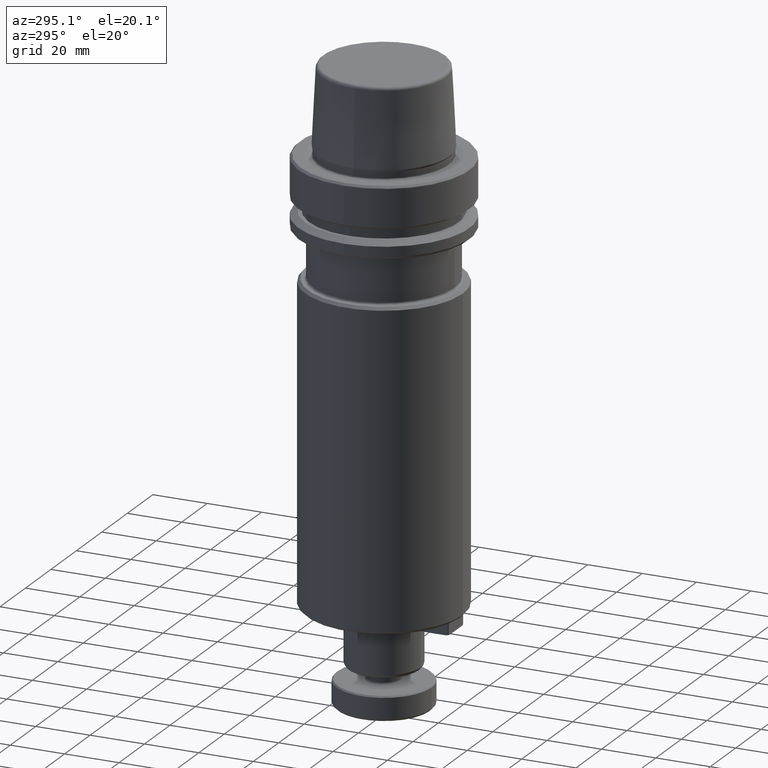
[diagram: clean part render]
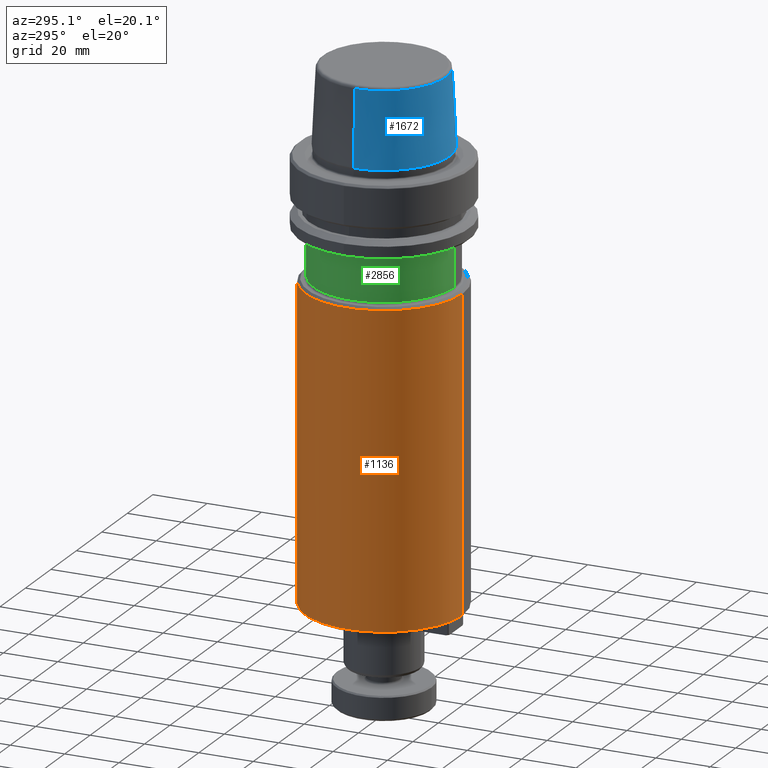
[diagram: same view with three faces highlighted in distinct colors, each labeled with its STEP entity id]
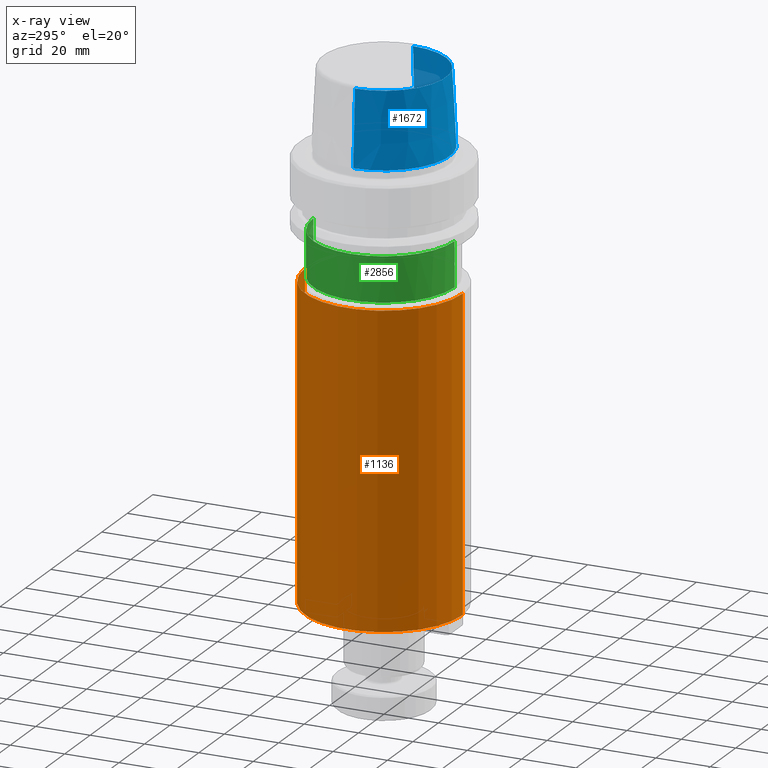
[diagram: x-ray of the same camera — body ghosted, the three highlighted faces saturated]
A machine part, auxiliary view with three faces highlighted in distinct colors.
The next image is the same camera in x-ray (body ghosted, the three faces saturated) — at least one of them is partly hidden behind the body in this view.
Their STEP definitions:

[orange] entity #1136 — the highlighted cylindrical surface (partial cylindrical patch) has radius 29 mm, axis along (-0, 0, -1).
#87 = CYLINDRICAL_SURFACE ( 'NONE', #2025, 29.00000000000000000 ) ;
#137 = AXIS2_PLACEMENT_3D ( 'NONE', #869, #2479, #1103 ) ;
#351 = CARTESIAN_POINT ( 'NONE',  ( 0.0000000000000000000, 29.00000000000000700, -181.0000000000000000 ) ) ;
#405 = EDGE_CURVE ( 'NONE', #485, #812, #2250, .T. ) ;
#417 = CARTESIAN_POINT ( 'NONE',  ( 3.551475717527324800E-015, -29.00000000000000400, -45.00000000000001400 ) ) ;
#418 = VECTOR ( 'NONE', #1939, 1000.000000000000000 ) ;
#445 = DIRECTION ( 'NONE',  ( -0.0000000000000000000, 4.740568254763946100E-017, -1.000000000000000000 ) ) ;
#478 = CARTESIAN_POINT ( 'NONE',  ( 3.551475717527324000E-015, -28.99999999999999300, -159.0000000000000300 ) ) ;
#485 = VERTEX_POINT ( 'NONE', #1277 ) ;
#643 = VECTOR ( 'NONE', #2083, 1000.000000000000000 ) ;
#720 = LINE ( 'NONE', #1850, #643 ) ;
#812 = VERTEX_POINT ( 'NONE', #1721 ) ;
#869 = CARTESIAN_POINT ( 'NONE',  ( 0.0000000000000000000, 9.007079684051494200E-016, -45.00000000000001400 ) ) ;
#907 = ORIENTED_EDGE ( 'NONE', *, *, #1222, .T. ) ;
#994 = ORIENTED_EDGE ( 'NONE', *, *, #405, .T. ) ;
#1091 = CIRCLE ( 'NONE', #137, 29.00000000000000000 ) ;
#1103 = DIRECTION ( 'NONE',  ( 0.0000000000000000000, 1.000000000000000000, 0.0000000000000000000 ) ) ;
#1136 = ADVANCED_FACE ( 'NONE', ( #1895 ), #87, .T. ) ;
#1222 = EDGE_CURVE ( 'NONE', #2679, #485, #1091, .T. ) ;
#1277 = CARTESIAN_POINT ( 'NONE',  ( 0.0000000000000000000, 29.00000000000000000, -45.00000000000001400 ) ) ;
#1299 = AXIS2_PLACEMENT_3D ( 'NONE', #1794, #445, #2027 ) ;
#1502 = VERTEX_POINT ( 'NONE', #478 ) ;
#1564 = ORIENTED_EDGE ( 'NONE', *, *, #2941, .F. ) ;
#1594 = DIRECTION ( 'NONE',  ( 0.0000000000000000000, 1.000000000000000000, 0.0000000000000000000 ) ) ;
#1597 = EDGE_CURVE ( 'NONE', #2679, #1502, #720, .T. ) ;
#1721 = CARTESIAN_POINT ( 'NONE',  ( 0.0000000000000000000, 29.00000000000000700, -159.0000000000000300 ) ) ;
#1794 = CARTESIAN_POINT ( 'NONE',  ( 0.0000000000000000000, 6.304955778836048900E-015, -159.0000000000000300 ) ) ;
#1846 = ORIENTED_EDGE ( 'NONE', *, *, #1597, .F. ) ;
#1850 = CARTESIAN_POINT ( 'NONE',  ( 3.551475717527324000E-015, -28.99999999999999300, -181.0000000000000000 ) ) ;
#1895 = FACE_OUTER_BOUND ( 'NONE', #2026, .T. ) ;
#1939 = DIRECTION ( 'NONE',  ( -0.0000000000000000000, 4.740568254763946100E-017, -1.000000000000000000 ) ) ;
#1995 = CIRCLE ( 'NONE', #1299, 29.00000000000000000 ) ;
#2025 = AXIS2_PLACEMENT_3D ( 'NONE', #2781, #2303, #1594 ) ;
#2026 = EDGE_LOOP ( 'NONE', ( #1846, #907, #994, #1564 ) ) ;
#2027 = DIRECTION ( 'NONE',  ( 0.0000000000000000000, 1.000000000000000000, 0.0000000000000000000 ) ) ;
#2083 = DIRECTION ( 'NONE',  ( -0.0000000000000000000, 4.740568254763946100E-017, -1.000000000000000000 ) ) ;
#2250 = LINE ( 'NONE', #351, #418 ) ;
#2303 = DIRECTION ( 'NONE',  ( -0.0000000000000000000, 4.740568254763946100E-017, -1.000000000000000000 ) ) ;
#2479 = DIRECTION ( 'NONE',  ( -0.0000000000000000000, 4.740568254763946100E-017, -1.000000000000000000 ) ) ;
#2679 = VERTEX_POINT ( 'NONE', #417 ) ;
#2781 = CARTESIAN_POINT ( 'NONE',  ( 0.0000000000000000000, 7.347880794884115200E-015, -181.0000000000000000 ) ) ;
#2941 = EDGE_CURVE ( 'NONE', #1502, #812, #1995, .T. ) ;

[blue] entity #1672 — the highlighted conical surface has half-angle 2.868 deg.
#48 = CARTESIAN_POINT ( 'NONE',  ( -22.77957961851797100, 0.0000000000000000000, 30.76004333261571900 ) ) ;
#88 = VECTOR ( 'NONE', #597, 1000.000000000000200 ) ;
#108 = ORIENTED_EDGE ( 'NONE', *, *, #1918, .T. ) ;
#114 = LINE ( 'NONE', #1472, #2484 ) ;
#122 = AXIS2_PLACEMENT_3D ( 'NONE', #2578, #1196, #2835 ) ;
#173 = AXIS2_PLACEMENT_3D ( 'NONE', #2839, #2117, #1427 ) ;
#459 = VERTEX_POINT ( 'NONE', #2904 ) ;
#578 = DIRECTION ( 'NONE',  ( 0.05003611051310812000, 6.127656258166108900E-018, -0.9987474093306675200 ) ) ;
#597 = DIRECTION ( 'NONE',  ( -0.05003611051310812000, 0.0000000000000000000, -0.9987474093306675200 ) ) ;
#667 = ORIENTED_EDGE ( 'NONE', *, *, #2498, .T. ) ;
#976 = CARTESIAN_POINT ( 'NONE',  ( 0.0000000000000000000, 0.0000000000000000000, 30.76004333261571900 ) ) ;
#998 = EDGE_CURVE ( 'NONE', #459, #1013, #114, .T. ) ;
#1013 = VERTEX_POINT ( 'NONE', #1633 ) ;
#1193 = DIRECTION ( 'NONE',  ( 1.000000000000000000, 0.0000000000000000000, 0.0000000000000000000 ) ) ;
#1196 = DIRECTION ( 'NONE',  ( -0.0000000000000000000, -0.0000000000000000000, 1.000000000000000000 ) ) ;
#1274 = CARTESIAN_POINT ( 'NONE',  ( -24.17032625081241900, 0.0000000000000000000, 3.000000000000002700 ) ) ;
#1427 = DIRECTION ( 'NONE',  ( -1.000000000000000000, 0.0000000000000000000, 0.0000000000000000000 ) ) ;
#1472 = CARTESIAN_POINT ( 'NONE',  ( 24.17032625081241900, 2.960011267740467600E-015, 3.000000000000002700 ) ) ;
#1563 = FACE_OUTER_BOUND ( 'NONE', #2783, .T. ) ;
#1632 = VERTEX_POINT ( 'NONE', #48 ) ;
#1633 = CARTESIAN_POINT ( 'NONE',  ( 24.17032625081241900, 0.0000000000000000000, 3.000000000000002700 ) ) ;
#1654 = EDGE_CURVE ( 'NONE', #1632, #459, #2961, .T. ) ;
#1672 = ADVANCED_FACE ( 'NONE', ( #1563 ), #2110, .T. ) ;
#1851 = VERTEX_POINT ( 'NONE', #2023 ) ;
#1918 = EDGE_CURVE ( 'NONE', #1632, #1851, #2526, .T. ) ;
#2023 = CARTESIAN_POINT ( 'NONE',  ( -24.17032625081241900, 2.960011267740467600E-015, 3.000000000000002700 ) ) ;
#2110 = CONICAL_SURFACE ( 'NONE', #173, 24.17032625081241900, 0.05005701257456005000 ) ;
#2117 = DIRECTION ( 'NONE',  ( 0.0000000000000000000, 0.0000000000000000000, -1.000000000000000000 ) ) ;
#2160 = ORIENTED_EDGE ( 'NONE', *, *, #998, .F. ) ;
#2203 = ORIENTED_EDGE ( 'NONE', *, *, #1654, .F. ) ;
#2272 = CIRCLE ( 'NONE', #122, 24.17032625081241900 ) ;
#2484 = VECTOR ( 'NONE', #578, 1000.000000000000200 ) ;
#2498 = EDGE_CURVE ( 'NONE', #1851, #1013, #2272, .T. ) ;
#2526 = LINE ( 'NONE', #1274, #88 ) ;
#2542 = AXIS2_PLACEMENT_3D ( 'NONE', #976, #2574, #1193 ) ;
#2574 = DIRECTION ( 'NONE',  ( -0.0000000000000000000, -0.0000000000000000000, 1.000000000000000000 ) ) ;
#2578 = CARTESIAN_POINT ( 'NONE',  ( 0.0000000000000000000, 0.0000000000000000000, 3.000000000000002700 ) ) ;
#2783 = EDGE_LOOP ( 'NONE', ( #2160, #2203, #108, #667 ) ) ;
#2835 = DIRECTION ( 'NONE',  ( 1.000000000000000000, 0.0000000000000000000, 0.0000000000000000000 ) ) ;
#2839 = CARTESIAN_POINT ( 'NONE',  ( 0.0000000000000000000, 0.0000000000000000000, 3.000000000000002700 ) ) ;
#2904 = CARTESIAN_POINT ( 'NONE',  ( 22.77957961851797100, 2.874852597157249900E-015, 30.76004333261571900 ) ) ;
#2961 = CIRCLE ( 'NONE', #2542, 22.77957961851797100 ) ;

[green] entity #2856 — the highlighted cylindrical surface (partial cylindrical patch) has radius 26 mm, axis along (-0, 0, -1).
#41 = VERTEX_POINT ( 'NONE', #2752 ) ;
#91 = AXIS2_PLACEMENT_3D ( 'NONE', #618, #1084, #2691 ) ;
#112 = ORIENTED_EDGE ( 'NONE', *, *, #1303, .F. ) ;
#200 = DIRECTION ( 'NONE',  ( 0.0000000000000000000, 1.000000000000000000, 0.0000000000000000000 ) ) ;
#205 = ORIENTED_EDGE ( 'NONE', *, *, #2785, .T. ) ;
#209 = DIRECTION ( 'NONE',  ( 0.0000000000000000000, 0.0000000000000000000, -1.000000000000000000 ) ) ;
#348 = CARTESIAN_POINT ( 'NONE',  ( 0.0000000000000000000, 26.00000000000000000, -43.20000000000001700 ) ) ;
#411 = VECTOR ( 'NONE', #1578, 1000.000000000000000 ) ;
#413 = VECTOR ( 'NONE', #760, 1000.000000000000000 ) ;
#425 = EDGE_LOOP ( 'NONE', ( #112, #205, #2066, #2658, #1513 ) ) ;
#490 = LINE ( 'NONE', #532, #413 ) ;
#532 = CARTESIAN_POINT ( 'NONE',  ( 0.0000000000000000000, 26.00000000000000700, -181.0000000000000000 ) ) ;
#618 = CARTESIAN_POINT ( 'NONE',  ( 0.0000000000000000000, 7.347880794884115200E-015, -181.0000000000000000 ) ) ;
#650 = EDGE_CURVE ( 'NONE', #2057, #2842, #898, .T. ) ;
#760 = DIRECTION ( 'NONE',  ( -0.0000000000000000000, 4.740568254763946100E-017, -1.000000000000000000 ) ) ;
#850 = AXIS2_PLACEMENT_3D ( 'NONE', #2966, #1553, #200 ) ;
#898 = CIRCLE ( 'NONE', #2464, 26.00000000000000000 ) ;
#926 = DIRECTION ( 'NONE',  ( 0.0000000000000000000, 0.0000000000000000000, -1.000000000000000000 ) ) ;
#951 = LINE ( 'NONE', #1339, #411 ) ;
#999 = VERTEX_POINT ( 'NONE', #348 ) ;
#1084 = DIRECTION ( 'NONE',  ( -0.0000000000000000000, 4.740568254763946100E-017, -1.000000000000000000 ) ) ;
#1287 = CARTESIAN_POINT ( 'NONE',  ( 0.0000000000000000000, 26.00000000000000000, -26.79999999999999000 ) ) ;
#1303 = EDGE_CURVE ( 'NONE', #41, #1770, #951, .T. ) ;
#1339 = CARTESIAN_POINT ( 'NONE',  ( 3.184081677783118200E-015, -25.99999999999999300, -181.0000000000000000 ) ) ;
#1351 = CIRCLE ( 'NONE', #1820, 26.00000000000000000 ) ;
#1513 = ORIENTED_EDGE ( 'NONE', *, *, #2915, .F. ) ;
#1553 = DIRECTION ( 'NONE',  ( -0.0000000000000000000, 4.740568254763946100E-017, -1.000000000000000000 ) ) ;
#1572 = CARTESIAN_POINT ( 'NONE',  ( 0.0000000000000000000, 3.792454603811038600E-017, -26.79999999999999000 ) ) ;
#1578 = DIRECTION ( 'NONE',  ( -0.0000000000000000000, 4.740568254763946100E-017, -1.000000000000000000 ) ) ;
#1661 = CARTESIAN_POINT ( 'NONE',  ( -26.00000000000000000, 3.270992095787122600E-015, -26.79999999999999000 ) ) ;
#1770 = VERTEX_POINT ( 'NONE', #2013 ) ;
#1797 = DIRECTION ( 'NONE',  ( 1.000000000000000000, 0.0000000000000000000, 0.0000000000000000000 ) ) ;
#1820 = AXIS2_PLACEMENT_3D ( 'NONE', #1572, #209, #1797 ) ;
#2013 = CARTESIAN_POINT ( 'NONE',  ( 3.184081677783118200E-015, -26.00000000000000000, -43.20000000000001700 ) ) ;
#2040 = EDGE_CURVE ( 'NONE', #2842, #999, #490, .T. ) ;
#2057 = VERTEX_POINT ( 'NONE', #1661 ) ;
#2066 = ORIENTED_EDGE ( 'NONE', *, *, #650, .T. ) ;
#2080 = CIRCLE ( 'NONE', #850, 26.00000000000000000 ) ;
#2228 = CYLINDRICAL_SURFACE ( 'NONE', #91, 26.00000000000000000 ) ;
#2298 = CARTESIAN_POINT ( 'NONE',  ( 0.0000000000000000000, 3.792454603811038600E-017, -26.79999999999999000 ) ) ;
#2464 = AXIS2_PLACEMENT_3D ( 'NONE', #2298, #926, #2527 ) ;
#2527 = DIRECTION ( 'NONE',  ( 1.000000000000000000, 0.0000000000000000000, 0.0000000000000000000 ) ) ;
#2658 = ORIENTED_EDGE ( 'NONE', *, *, #2040, .T. ) ;
#2691 = DIRECTION ( 'NONE',  ( 0.0000000000000000000, 1.000000000000000000, 0.0000000000000000000 ) ) ;
#2752 = CARTESIAN_POINT ( 'NONE',  ( 3.184081677783118200E-015, -26.00000000000000000, -26.79999999999999000 ) ) ;
#2785 = EDGE_CURVE ( 'NONE', #41, #2057, #1351, .T. ) ;
#2842 = VERTEX_POINT ( 'NONE', #1287 ) ;
#2856 = ADVANCED_FACE ( 'NONE', ( #2858 ), #2228, .T. ) ;
#2858 = FACE_OUTER_BOUND ( 'NONE', #425, .T. ) ;
#2915 = EDGE_CURVE ( 'NONE', #1770, #999, #2080, .T. ) ;
#2966 = CARTESIAN_POINT ( 'NONE',  ( 0.0000000000000000000, 8.153777398193987400E-016, -43.20000000000001700 ) ) ;